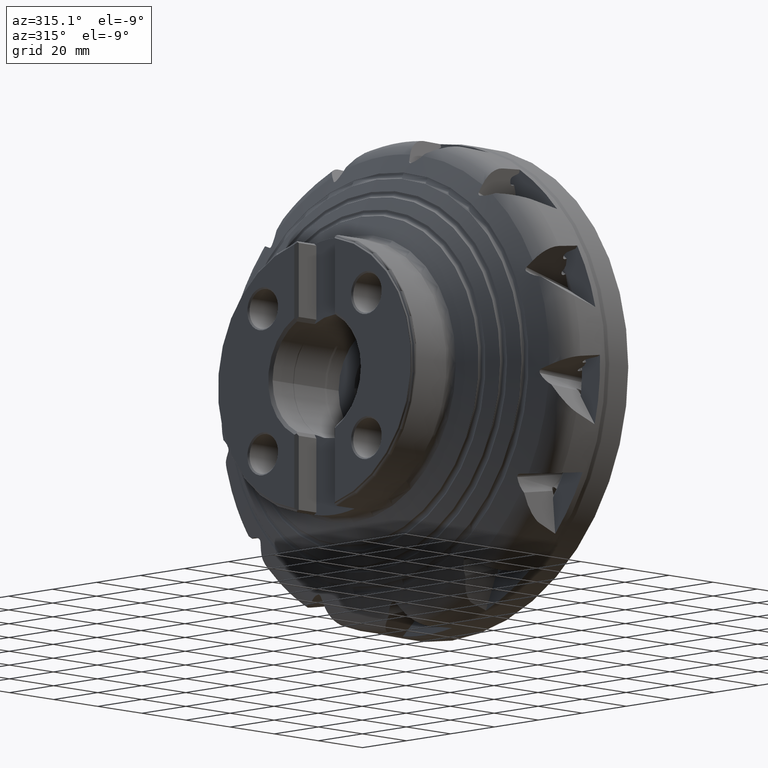
[diagram: clean part render]
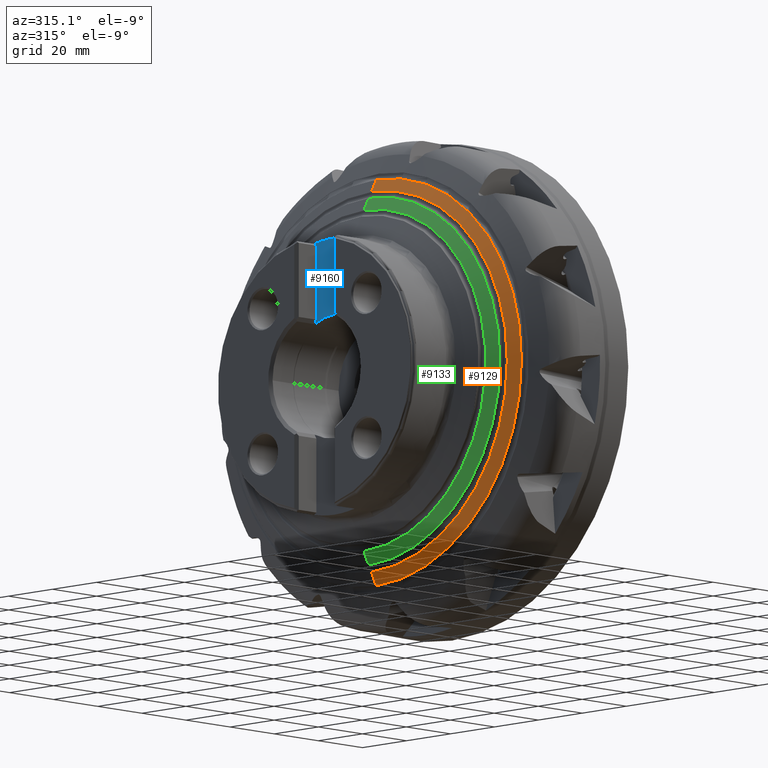
[diagram: same view with three faces highlighted in distinct colors, each labeled with its STEP entity id]
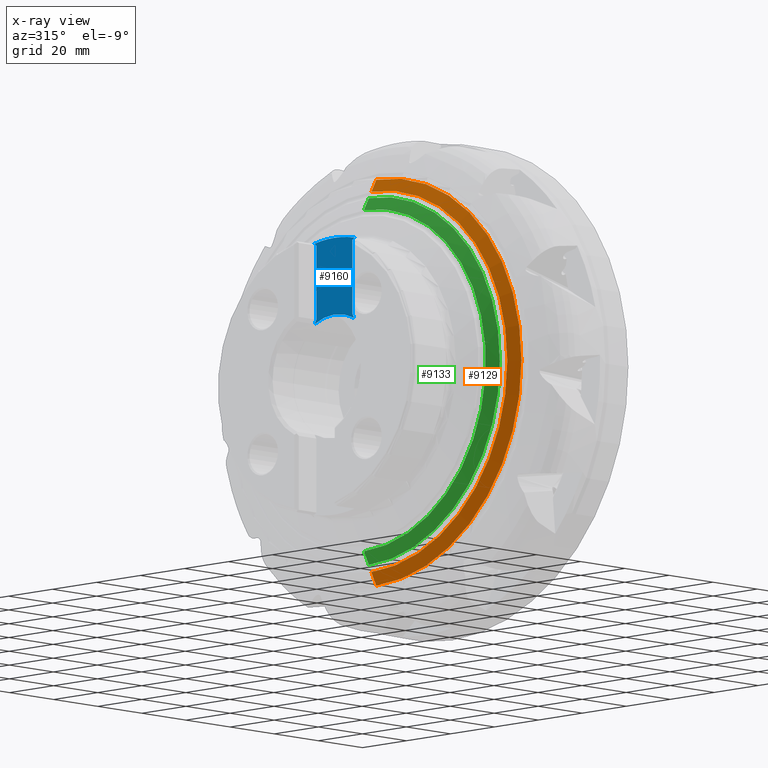
[diagram: x-ray of the same camera — body ghosted, the three highlighted faces saturated]
A machine part, auxiliary view with three faces highlighted in distinct colors.
The next image is the same camera in x-ray (body ghosted, the three faces saturated) — at least one of them is partly hidden behind the body in this view.
Their STEP definitions:

[orange] entity #9129 — the highlighted conical surface has half-angle 61.911 deg.
#1662 = ORIENTED_EDGE ( 'NONE', *, *, #18215, .F. ) ;
#1663 = ORIENTED_EDGE ( 'NONE', *, *, #3718, .T. ) ;
#1664 = ORIENTED_EDGE ( 'NONE', *, *, #18224, .T. ) ;
#1665 = ORIENTED_EDGE ( 'NONE', *, *, #3726, .F. ) ;
#2317 = EDGE_LOOP ( 'NONE', ( #1662, #1663, #1664, #1665 ) ) ;
#3573 = CARTESIAN_POINT ( 'NONE',  ( -33.24363703887912200, 0.0000000000000000000, -65.99878866412967700 ) ) ;
#3582 = CARTESIAN_POINT ( 'NONE',  ( -35.46466462727380500, 0.0000000000000000000, -61.83717949354910100 ) ) ;
#3718 = EDGE_CURVE ( 'NONE', #13178, #12684, #10451, .T. ) ;
#3726 = EDGE_CURVE ( 'NONE', #6109, #12675, #10454, .T. ) ;
#5268 = AXIS2_PLACEMENT_3D ( 'NONE', #13367, #13386, #13387 ) ;
#5270 = AXIS2_PLACEMENT_3D ( 'NONE', #13397, #13398, #13399 ) ;
#6109 = VERTEX_POINT ( 'NONE', #15199 ) ;
#6325 = VECTOR ( 'NONE', #8248, 1000.000000000000100 ) ;
#6328 = LINE ( 'NONE', #8247, #6325 ) ;
#6332 = VECTOR ( 'NONE', #8263, 1000.000000000000100 ) ;
#6340 = LINE ( 'NONE', #8256, #6332 ) ;
#6816 = CARTESIAN_POINT ( 'NONE',  ( -35.46466462727380500, 7.827695461010211900E-015, 61.83717949354910100 ) ) ;
#8247 = CARTESIAN_POINT ( 'NONE',  ( -33.24363703887912200, 8.082520528512901900E-015, 65.99878866412967700 ) ) ;
#8248 = DIRECTION ( 'NONE',  ( 0.4708362283847367100, 1.080408674865418300E-016, 0.8822206334247889600 ) ) ;
#8256 = CARTESIAN_POINT ( 'NONE',  ( -33.24363703887912200, 0.0000000000000000000, -65.99878866412967700 ) ) ;
#8263 = DIRECTION ( 'NONE',  ( 0.4708362283847367100, 0.0000000000000000000, -0.8822206334247889600 ) ) ;
#9129 = ADVANCED_FACE ( 'NONE', ( #17703 ), #17705, .T. ) ;
#10451 = CIRCLE ( 'NONE', #5268, 61.83717949354910100 ) ;
#10454 = CIRCLE ( 'NONE', #5270, 65.99878866412967700 ) ;
#12675 = VERTEX_POINT ( 'NONE', #3573 ) ;
#12684 = VERTEX_POINT ( 'NONE', #3582 ) ;
#13178 = VERTEX_POINT ( 'NONE', #6816 ) ;
#13367 = CARTESIAN_POINT ( 'NONE',  ( -35.46466462727380500, 0.0000000000000000000, 0.0000000000000000000 ) ) ;
#13386 = DIRECTION ( 'NONE',  ( 1.000000000000000000, -0.0000000000000000000, -0.0000000000000000000 ) ) ;
#13387 = DIRECTION ( 'NONE',  ( 0.0000000000000000000, 0.0000000000000000000, -1.000000000000000000 ) ) ;
#13397 = CARTESIAN_POINT ( 'NONE',  ( -33.24363703887912200, 0.0000000000000000000, 0.0000000000000000000 ) ) ;
#13398 = DIRECTION ( 'NONE',  ( 1.000000000000000000, -0.0000000000000000000, -0.0000000000000000000 ) ) ;
#13399 = DIRECTION ( 'NONE',  ( 0.0000000000000000000, 0.0000000000000000000, -1.000000000000000000 ) ) ;
#15199 = CARTESIAN_POINT ( 'NONE',  ( -33.24363703887912200, 8.088611913754256100E-015, 65.99878866412967700 ) ) ;
#16764 = AXIS2_PLACEMENT_3D ( 'NONE', #19773, #19772, #19764 ) ;
#17703 = FACE_OUTER_BOUND ( 'NONE', #2317, .T. ) ;
#17705 = CONICAL_SURFACE ( 'NONE', #16764, 65.99878866412967700, 1.080557920633188300 ) ;
#18215 = EDGE_CURVE ( 'NONE', #13178, #6109, #6328, .T. ) ;
#18224 = EDGE_CURVE ( 'NONE', #12684, #12675, #6340, .T. ) ;
#19764 = DIRECTION ( 'NONE',  ( 0.0000000000000000000, 0.0000000000000000000, -1.000000000000000000 ) ) ;
#19772 = DIRECTION ( 'NONE',  ( 1.000000000000000000, -0.0000000000000000000, -0.0000000000000000000 ) ) ;
#19773 = CARTESIAN_POINT ( 'NONE',  ( -33.24363703887912200, 0.0000000000000000000, 0.0000000000000000000 ) ) ;

[blue] entity #9160 — the highlighted planar face has unit normal (1, 0, 0).
#1832 = ORIENTED_EDGE ( 'NONE', *, *, #3735, .T. ) ;
#1833 = ORIENTED_EDGE ( 'NONE', *, *, #9367, .T. ) ;
#1834 = ORIENTED_EDGE ( 'NONE', *, *, #3866, .T. ) ;
#1835 = ORIENTED_EDGE ( 'NONE', *, *, #3846, .T. ) ;
#1836 = ORIENTED_EDGE ( 'NONE', *, *, #3850, .T. ) ;
#1837 = ORIENTED_EDGE ( 'NONE', *, *, #3788, .F. ) ;
#1838 = ORIENTED_EDGE ( 'NONE', *, *, #3867, .T. ) ;
#1839 = ORIENTED_EDGE ( 'NONE', *, *, #3861, .F. ) ;
#1840 = ORIENTED_EDGE ( 'NONE', *, *, #3831, .T. ) ;
#2344 = EDGE_LOOP ( 'NONE', ( #1832, #1833, #1834, #1835, #1836, #1837, #1838, #1839, #1840 ) ) ;
#3735 = EDGE_CURVE ( 'NONE', #9755, #13173, #10459, .T. ) ;
#3788 = EDGE_CURVE ( 'NONE', #9759, #9743, #10478, .T. ) ;
#3831 = EDGE_CURVE ( 'NONE', #9715, #9755, #10504, .T. ) ;
#3846 = EDGE_CURVE ( 'NONE', #9712, #9710, #10518, .T. ) ;
#3850 = EDGE_CURVE ( 'NONE', #9710, #9743, #10522, .T. ) ;
#3861 = EDGE_CURVE ( 'NONE', #9715, #9711, #10492, .T. ) ;
#3866 = EDGE_CURVE ( 'NONE', #5967, #9712, #10535, .T. ) ;
#3867 = EDGE_CURVE ( 'NONE', #9759, #9711, #10537, .T. ) ;
#5272 = AXIS2_PLACEMENT_3D ( 'NONE', #13409, #13410, #13411 ) ;
#5283 = AXIS2_PLACEMENT_3D ( 'NONE', #13502, #13507, #13508 ) ;
#5967 = VERTEX_POINT ( 'NONE', #15147 ) ;
#6811 = CARTESIAN_POINT ( 'NONE',  ( -52.25000000000001400, 5.510910596163087200E-015, 44.99999999999998600 ) ) ;
#9160 = ADVANCED_FACE ( 'NONE', ( #17764 ), #19867, .F. ) ;
#9367 = EDGE_CURVE ( 'NONE', #13173, #5967, #18095, .T. ) ;
#9710 = VERTEX_POINT ( 'NONE', #21635 ) ;
#9711 = VERTEX_POINT ( 'NONE', #21636 ) ;
#9712 = VERTEX_POINT ( 'NONE', #21637 ) ;
#9715 = VERTEX_POINT ( 'NONE', #21640 ) ;
#9743 = VERTEX_POINT ( 'NONE', #21668 ) ;
#9755 = VERTEX_POINT ( 'NONE', #21680 ) ;
#9759 = VERTEX_POINT ( 'NONE', #21684 ) ;
#10459 = CIRCLE ( 'NONE', #5272, 44.99999999999998600 ) ;
#10478 = CIRCLE ( 'NONE', #5283, 20.07499999999999900 ) ;
#10492 = LINE ( 'NONE', #13545, #10532 ) ;
#10504 = LINE ( 'NONE', #13549, #10505 ) ;
#10505 = VECTOR ( 'NONE', #13550, 1000.000000000000100 ) ;
#10518 = LINE ( 'NONE', #13563, #10519 ) ;
#10519 = VECTOR ( 'NONE', #13564, 1000.000000000000000 ) ;
#10522 = LINE ( 'NONE', #13567, #10523 ) ;
#10523 = VECTOR ( 'NONE', #13568, 1000.000000000000100 ) ;
#10532 = VECTOR ( 'NONE', #13578, 1000.000000000000000 ) ;
#10535 = LINE ( 'NONE', #13581, #10536 ) ;
#10536 = VECTOR ( 'NONE', #13582, 1000.000000000000100 ) ;
#10537 = LINE ( 'NONE', #13583, #10538 ) ;
#10538 = VECTOR ( 'NONE', #13584, 1000.000000000000000 ) ;
#13173 = VERTEX_POINT ( 'NONE', #6811 ) ;
#13409 = CARTESIAN_POINT ( 'NONE',  ( -52.25000000000001400, 0.0000000000000000000, 0.0000000000000000000 ) ) ;
#13410 = DIRECTION ( 'NONE',  ( -1.000000000000000000, -0.0000000000000000000, -0.0000000000000000000 ) ) ;
#13411 = DIRECTION ( 'NONE',  ( 0.0000000000000000000, 7.105427357601001900E-015, -1.000000000000000000 ) ) ;
#13502 = CARTESIAN_POINT ( 'NONE',  ( -52.25000000000001400, -6.398568198721922000E-015, 0.0000000000000000000 ) ) ;
#13507 = DIRECTION ( 'NONE',  ( -1.000000000000000000, -0.0000000000000000000, -0.0000000000000000000 ) ) ;
#13508 = DIRECTION ( 'NONE',  ( 0.0000000000000000000, 1.776356839400250900E-015, -1.000000000000000000 ) ) ;
#13545 = CARTESIAN_POINT ( 'NONE',  ( -52.25000000000001400, -8.199999999999995700, 53.17499999999999000 ) ) ;
#13549 = CARTESIAN_POINT ( 'NONE',  ( -52.25000000000001400, -12.76825910542896600, 46.52833441021069700 ) ) ;
#13550 = DIRECTION ( 'NONE',  ( -0.0000000000000000000, -0.8241185251771423500, 0.5664173871447199000 ) ) ;
#13563 = CARTESIAN_POINT ( 'NONE',  ( -52.25000000000001400, 8.200000000000004600, 53.17499999999999000 ) ) ;
#13564 = DIRECTION ( 'NONE',  ( -0.0000000000000000000, -0.0000000000000000000, -1.000000000000000000 ) ) ;
#13567 = CARTESIAN_POINT ( 'NONE',  ( -52.25000000000001400, -10.55795256543369300, 51.81363545161045900 ) ) ;
#13568 = DIRECTION ( 'NONE',  ( 0.0000000000000000000, 0.5000000000000051100, -0.8660254037844356000 ) ) ;
#13578 = DIRECTION ( 'NONE',  ( -0.0000000000000000000, -0.0000000000000000000, -1.000000000000000000 ) ) ;
#13581 = CARTESIAN_POINT ( 'NONE',  ( -52.25000000000001400, 1.629849071370422600, 38.87289539786498000 ) ) ;
#13582 = DIRECTION ( 'NONE',  ( 0.0000000000000000000, -0.8241185251771455700, -0.5664173871447153500 ) ) ;
#13583 = CARTESIAN_POINT ( 'NONE',  ( -52.25000000000001400, 6.457952565433543200, 44.71222714057810800 ) ) ;
#13584 = DIRECTION ( 'NONE',  ( -0.0000000000000000000, 0.5000000000000030000, 0.8660254037844369300 ) ) ;
#15147 = CARTESIAN_POINT ( 'NONE',  ( -52.25000000000001400, 9.170586121755620800, 44.05565060447367600 ) ) ;
#16792 = AXIS2_PLACEMENT_3D ( 'NONE', #19870, #19876, #19877 ) ;
#16970 = AXIS2_PLACEMENT_3D ( 'NONE', #20589, #20592, #20593 ) ;
#17764 = FACE_OUTER_BOUND ( 'NONE', #2344, .T. ) ;
#18095 = CIRCLE ( 'NONE', #16970, 44.99999999999998600 ) ;
#19867 = PLANE ( 'NONE',  #16792 ) ;
#19870 = CARTESIAN_POINT ( 'NONE',  ( -52.25000000000001400, -8.199999999999995700, 53.17499999999999000 ) ) ;
#19876 = DIRECTION ( 'NONE',  ( 1.000000000000000000, 0.0000000000000000000, 0.0000000000000000000 ) ) ;
#19877 = DIRECTION ( 'NONE',  ( 0.0000000000000000000, 0.0000000000000000000, -1.000000000000000000 ) ) ;
#20589 = CARTESIAN_POINT ( 'NONE',  ( -52.25000000000001400, 0.0000000000000000000, 0.0000000000000000000 ) ) ;
#20592 = DIRECTION ( 'NONE',  ( -1.000000000000000000, -0.0000000000000000000, -0.0000000000000000000 ) ) ;
#20593 = DIRECTION ( 'NONE',  ( 0.0000000000000000000, 0.0000000000000000000, -1.000000000000000000 ) ) ;
#21635 = CARTESIAN_POINT ( 'NONE',  ( -52.25000000000001400, 8.200000000000004600, 19.32390856231278100 ) ) ;
#21636 = CARTESIAN_POINT ( 'NONE',  ( -52.25000000000001400, -8.199999999999995700, 19.32390856231285500 ) ) ;
#21637 = CARTESIAN_POINT ( 'NONE',  ( -52.25000000000001400, 8.200000000000004600, 43.38856590938619500 ) ) ;
#21640 = CARTESIAN_POINT ( 'NONE',  ( -52.25000000000001400, -8.199999999999995700, 43.38856590938617300 ) ) ;
#21668 = CARTESIAN_POINT ( 'NONE',  ( -52.25000000000001400, 8.994923738608061800, 17.94706025890104000 ) ) ;
#21680 = CARTESIAN_POINT ( 'NONE',  ( -52.25000000000001400, -9.170586121755635000, 44.05565060447367600 ) ) ;
#21684 = CARTESIAN_POINT ( 'NONE',  ( -52.25000000000001400, -8.994923738608095600, 17.94706025890102900 ) ) ;

[green] entity #9133 — the highlighted conical surface has half-angle 61.911 deg.
#1678 = ORIENTED_EDGE ( 'NONE', *, *, #9384, .F. ) ;
#1679 = ORIENTED_EDGE ( 'NONE', *, *, #3731, .T. ) ;
#1680 = ORIENTED_EDGE ( 'NONE', *, *, #18201, .T. ) ;
#1681 = ORIENTED_EDGE ( 'NONE', *, *, #3728, .F. ) ;
#2409 = EDGE_LOOP ( 'NONE', ( #1678, #1679, #1680, #1681 ) ) ;
#3728 = EDGE_CURVE ( 'NONE', #6082, #13174, #10455, .T. ) ;
#3731 = EDGE_CURVE ( 'NONE', #6058, #6084, #10456, .T. ) ;
#5265 = AXIS2_PLACEMENT_3D ( 'NONE', #13403, #13404, #13405 ) ;
#5267 = AXIS2_PLACEMENT_3D ( 'NONE', #13400, #13401, #13402 ) ;
#6058 = VERTEX_POINT ( 'NONE', #15179 ) ;
#6082 = VERTEX_POINT ( 'NONE', #15190 ) ;
#6084 = VERTEX_POINT ( 'NONE', #15191 ) ;
#6319 = VECTOR ( 'NONE', #8223, 1000.000000000000000 ) ;
#6323 = LINE ( 'NONE', #8216, #6319 ) ;
#6812 = CARTESIAN_POINT ( 'NONE',  ( -36.64363703887910600, 0.0000000000000000000, -59.62810184605151400 ) ) ;
#8216 = CARTESIAN_POINT ( 'NONE',  ( -36.64363703887910600, 0.0000000000000000000, -59.62810184605151400 ) ) ;
#8223 = DIRECTION ( 'NONE',  ( 0.4708362283847379900, 0.0000000000000000000, -0.8822206334247884000 ) ) ;
#9133 = ADVANCED_FACE ( 'NONE', ( #17711 ), #17713, .T. ) ;
#9384 = EDGE_CURVE ( 'NONE', #6058, #6082, #18112, .T. ) ;
#10455 = CIRCLE ( 'NONE', #5267, 59.62810184605151400 ) ;
#10456 = CIRCLE ( 'NONE', #5265, 55.46649267547095300 ) ;
#13174 = VERTEX_POINT ( 'NONE', #6812 ) ;
#13400 = CARTESIAN_POINT ( 'NONE',  ( -36.64363703887910600, 0.0000000000000000000, 0.0000000000000000000 ) ) ;
#13401 = DIRECTION ( 'NONE',  ( 1.000000000000000000, -0.0000000000000000000, -0.0000000000000000000 ) ) ;
#13402 = DIRECTION ( 'NONE',  ( 0.0000000000000000000, 0.0000000000000000000, -1.000000000000000000 ) ) ;
#13403 = CARTESIAN_POINT ( 'NONE',  ( -38.86466462727379700, 0.0000000000000000000, 0.0000000000000000000 ) ) ;
#13404 = DIRECTION ( 'NONE',  ( 1.000000000000000000, -0.0000000000000000000, -0.0000000000000000000 ) ) ;
#13405 = DIRECTION ( 'NONE',  ( 0.0000000000000000000, 0.0000000000000000000, -1.000000000000000000 ) ) ;
#15179 = CARTESIAN_POINT ( 'NONE',  ( -38.86466462727379700, 7.047511338997248700E-015, 55.46649267547095300 ) ) ;
#15190 = CARTESIAN_POINT ( 'NONE',  ( -36.64363703887910600, 7.308427791741293600E-015, 59.62810184605151400 ) ) ;
#15191 = CARTESIAN_POINT ( 'NONE',  ( -38.86466462727379700, 0.0000000000000000000, -55.46649267547095300 ) ) ;
#16768 = AXIS2_PLACEMENT_3D ( 'NONE', #19785, #19784, #19776 ) ;
#17711 = FACE_OUTER_BOUND ( 'NONE', #2409, .T. ) ;
#17713 = CONICAL_SURFACE ( 'NONE', #16768, 59.62810184605151400, 1.080557920633187000 ) ;
#18107 = VECTOR ( 'NONE', #20639, 1000.000000000000000 ) ;
#18112 = LINE ( 'NONE', #20632, #18107 ) ;
#18201 = EDGE_CURVE ( 'NONE', #6084, #13174, #6323, .T. ) ;
#19776 = DIRECTION ( 'NONE',  ( 0.0000000000000000000, 0.0000000000000000000, -1.000000000000000000 ) ) ;
#19784 = DIRECTION ( 'NONE',  ( 1.000000000000000000, -0.0000000000000000000, -0.0000000000000000000 ) ) ;
#19785 = CARTESIAN_POINT ( 'NONE',  ( -36.64363703887910600, 0.0000000000000000000, 0.0000000000000000000 ) ) ;
#20632 = CARTESIAN_POINT ( 'NONE',  ( -36.64363703887910600, 7.302336406499937900E-015, 59.62810184605151400 ) ) ;
#20639 = DIRECTION ( 'NONE',  ( 0.4708362283847379900, 1.080408674865417500E-016, 0.8822206334247884000 ) ) ;